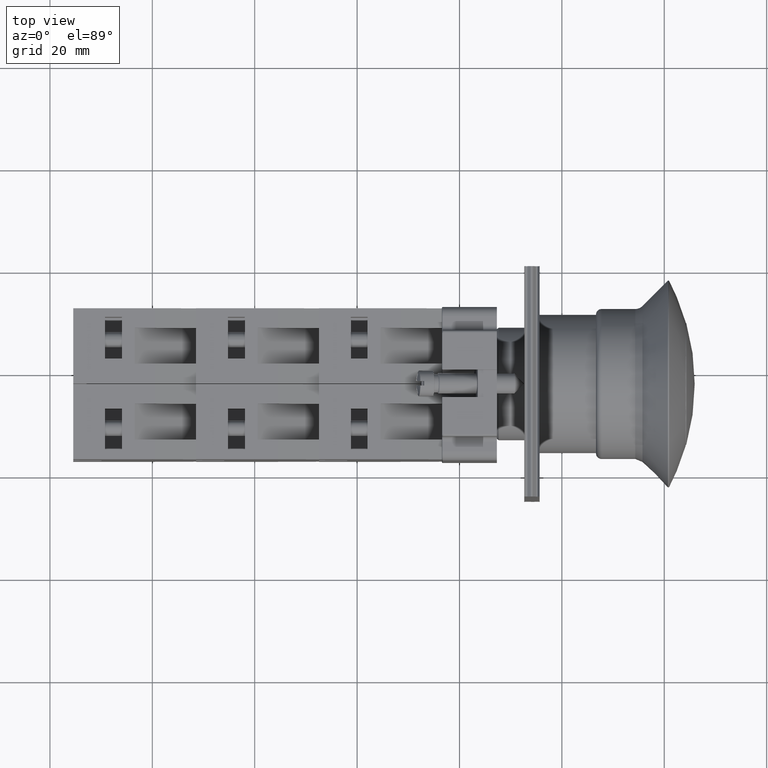
[diagram: clean part render]
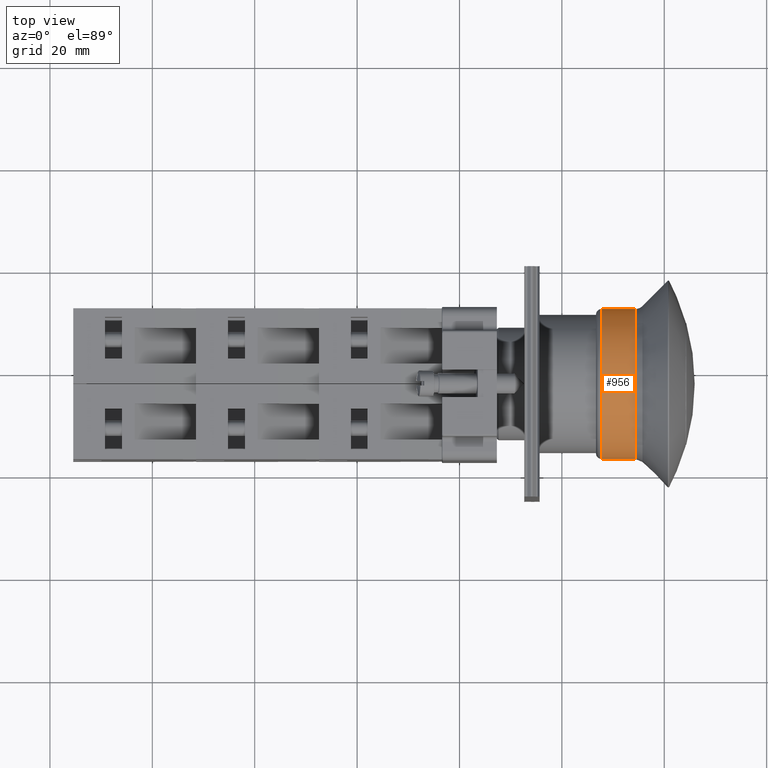
[diagram: same view with one face highlighted and labeled with its STEP entity id]
A machine part, top view. The second image highlights one B-rep face of the part: STEP entity #956.
In plain terms, the highlighted cylindrical surface (bore or boss wall) has radius 14.65 mm, axis along (1, -0, 0).
Its self-contained STEP definition (entity closure, byte-faithful):
#922=CARTESIAN_POINT('',(27.761439613035353,12.449128933604658,0.0));
#923=VERTEX_POINT('',#922);
#924=CARTESIAN_POINT('',(27.761439613035353,-2.200871066395349,0.0));
#925=DIRECTION('',(1.0,1.504367E-013,0.0));
#926=DIRECTION('',(-1.504367E-013,1.0,0.0));
#927=AXIS2_PLACEMENT_3D('',#924,#925,#926);
#928=CIRCLE('',#927,14.650000000000007);
#929=EDGE_CURVE('',#923,#923,#928,.T.);
#937=CARTESIAN_POINT('',(31.051655729923070,-2.200871066395349,0.0));
#938=DIRECTION('',(1.0,-3.885962E-018,0.0));
#939=DIRECTION('',(-1.504367E-013,1.0,0.0));
#940=AXIS2_PLACEMENT_3D('',#937,#938,#939);
#941=CYLINDRICAL_SURFACE('',#940,14.650000000000007);
#942=CARTESIAN_POINT('',(34.341871846810783,12.449128933604657,0.0));
#943=VERTEX_POINT('',#942);
#944=CARTESIAN_POINT('',(34.341871846810783,-2.200871066395349,0.0));
#945=DIRECTION('',(1.0,1.504367E-013,0.0));
#946=DIRECTION('',(-1.504367E-013,1.0,0.0));
#947=AXIS2_PLACEMENT_3D('',#944,#945,#946);
#948=CIRCLE('',#947,14.650000000000006);
#949=EDGE_CURVE('',#943,#943,#948,.T.);
#950=ORIENTED_EDGE('',*,*,#949,.F.);
#951=EDGE_LOOP('',(#950));
#952=FACE_OUTER_BOUND('',#951,.T.);
#953=ORIENTED_EDGE('',*,*,#929,.T.);
#954=EDGE_LOOP('',(#953));
#955=FACE_BOUND('',#954,.T.);
#956=ADVANCED_FACE('',(#952,#955),#941,.T.);